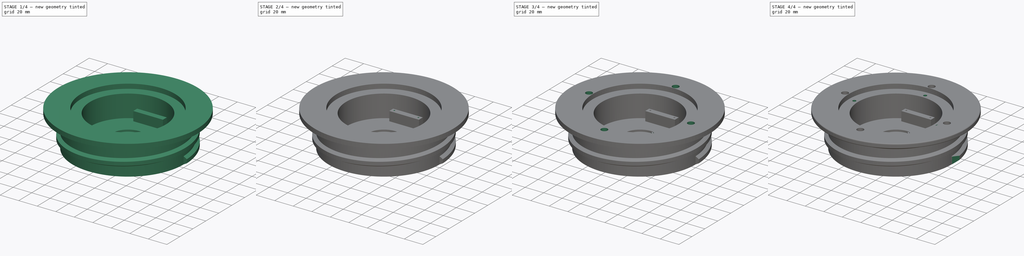
[diagram: build sequence overview — one tinted view per stage of 4, left to right]
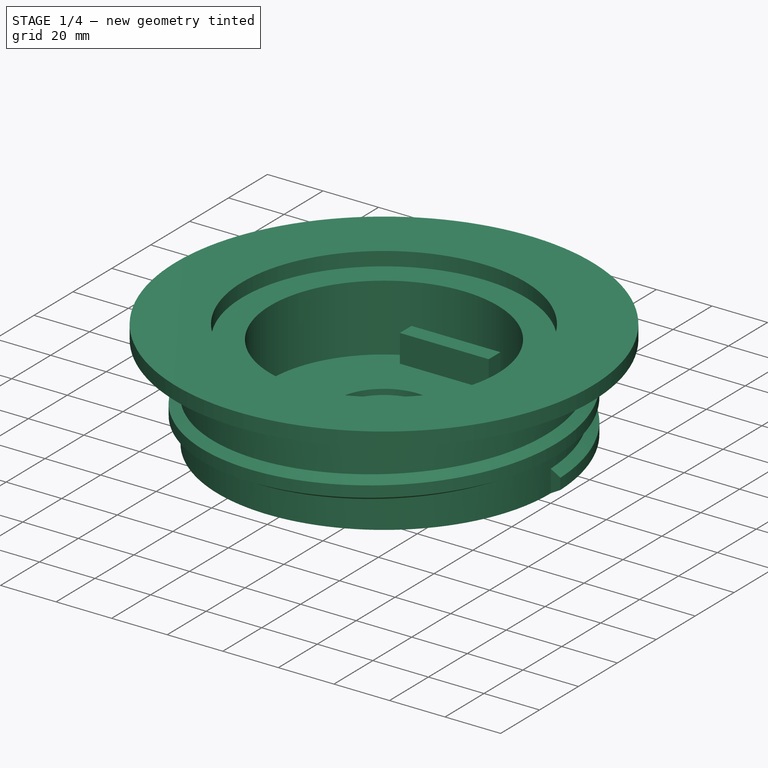
[diagram: stage 1 of 4 — iso view after this stage's code; geometry added in this stage tinted green]
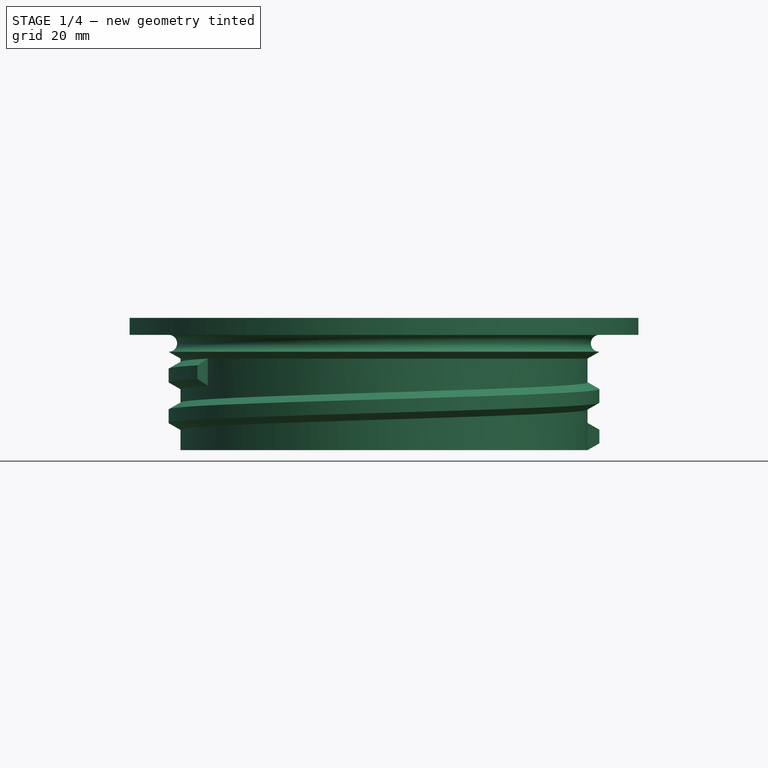
[diagram: stage 1 of 4 — front view after this stage's code; geometry added in this stage tinted green]
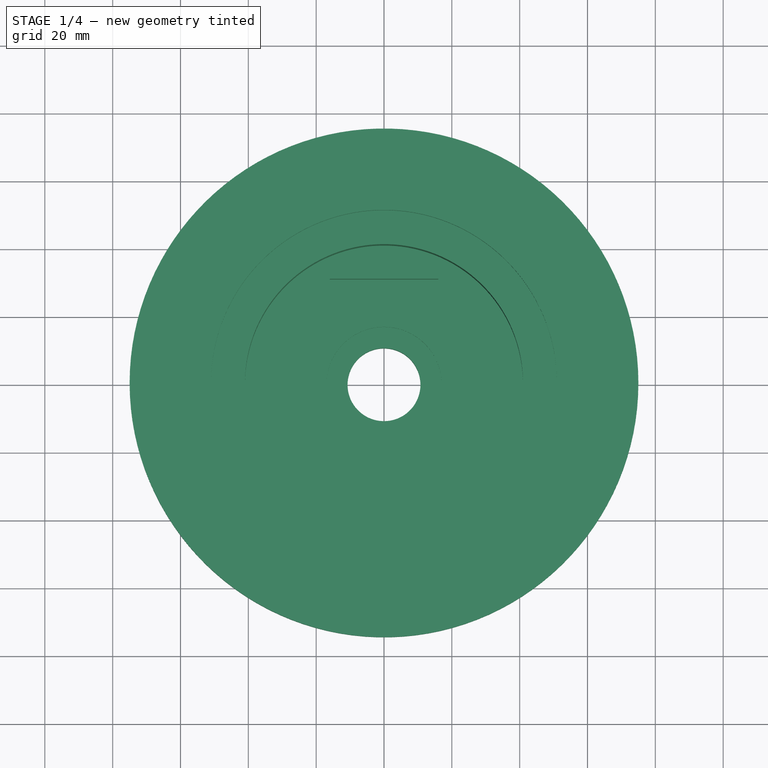
[diagram: stage 1 of 4 — top view after this stage's code; geometry added in this stage tinted green]
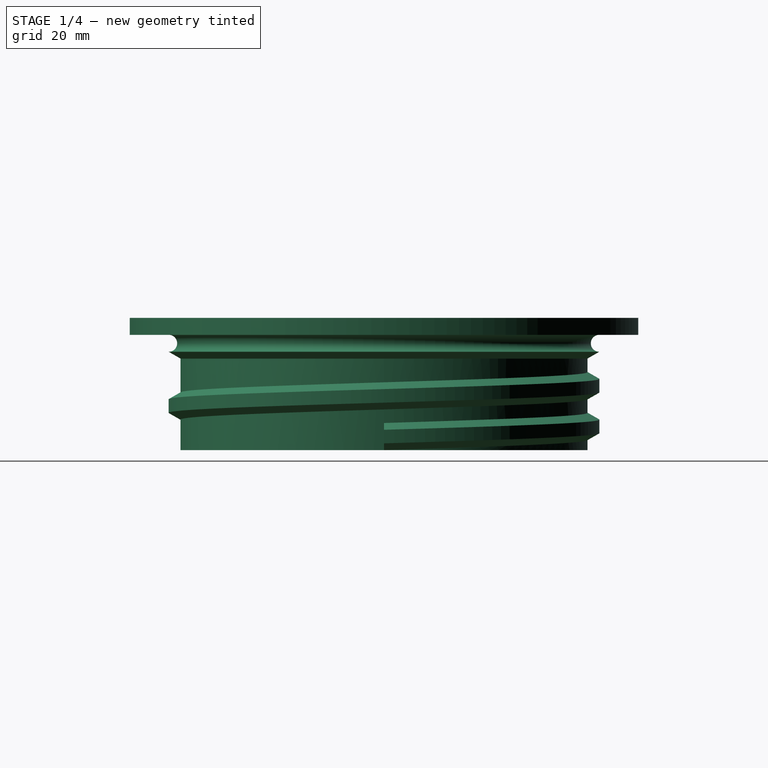
[diagram: stage 1 of 4 — right view after this stage's code; geometry added in this stage tinted green]
FCSTD DOCUMENT  (FreeCAD 0.19R24276 (Git))
Label: watertank_plug
License: All rights reserved
LicenseURL: http://en.wikipedia.org/wiki/All_rights_reserved
objects: Sketcher::SketchObject×10, PartDesign::Pocket×6, Part::Helix×2, PartDesign::FeatureBase×1, PartDesign::AdditivePipe×1, PartDesign::Revolution×1, PartDesign::Pad×1, PartDesign::ShapeBinder×1, PartDesign::SubtractivePipe×1, PartDesign::Fillet×1, PartDesign::Chamfer×1, PartDesign::Body×1
note: 39 computed .brp shape members not serialized (recipe doc carries the construction recipe); baked Part::Feature solids carry a one-line shape summary decoded from their .brp

FEATURE [Part::Helix] Helix
  Angle = 0
  AttacherType = Attacher::AttachEngine3D
  Height = 19
  LocalCoord = 0
  Pitch = 12
  Radius = 60
  Style = 1
FEATURE [PartDesign::FeatureBase] BaseFeature
  BaseFeature = -> Helix
FEATURE [Sketcher::SketchObject] Sketch
  FullyConstrained = true
  MapMode = 5
  Placement = pos=(0,0,0) rot=(1,0,0;1.5708rad)
  Support = -> [XZ_Plane]
  sketch-geometry (6):
    g0: LineSegment StartX=58 StartY=0 StartZ=0 EndX=60 EndY=0 EndZ=0
    g1: LineSegment StartX=60 StartY=0 StartZ=0 EndX=63.5 EndY=2 EndZ=0
    g2: LineSegment StartX=63.5 StartY=2 StartZ=0 EndX=63.5 EndY=6 EndZ=0
    g3: LineSegment StartX=63.5 StartY=6 StartZ=0 EndX=60 EndY=8 EndZ=0
    g4: LineSegment StartX=60 StartY=8 StartZ=0 EndX=58 EndY=8 EndZ=0
    g5: LineSegment StartX=58 StartY=8 StartZ=0 EndX=58 EndY=0 EndZ=0
  constraints (18):
    c: PointOnObject(g0,g-1)
    c: PointOnObject(g0,g-1)
    c: Coincident(g0,g1)
    c: Coincident(g1,g2)
    c: Coincident(g2,g3)
    c: Coincident(g3,g4)
    c: Coincident(g4,g5)
    c: Coincident(g5,g0)
    c: Vertical(g5)
    c: DistanceX(g4,g4) = 2
    c: Horizontal(g4)
    c: Equal(g4,g0)
    c: Vertical(g2)
    c: DistanceY(g2,g2) = 4
    c: DistanceX(g0,g1) = 3.5
    c: DistanceY(g5,g5) = 8
    c: DistanceY(g0,g1) = 2
    c: DistanceX(g-1,g0) = 58
FEATURE [PartDesign::AdditivePipe] AdditivePipe
  AuxilleryCurvelinear = true
  AuxillerySpineTangent = false
  BaseFeature = -> BaseFeature
  Binormal = (0,0,0)
  Mode = 2
  Profile = -> Sketch
  Spine = -> BaseFeature
  SpineTangent = false
  Transformation = 0
  Transition = 0
FEATURE [Sketcher::SketchObject] Sketch001
  FullyConstrained = true
  MapMode = 5
  Placement = pos=(0,0,0) rot=(1,0,0;1.5708rad)
  Support = -> [XZ_Plane]
  sketch-geometry (15):
    g0: LineSegment StartX=11.75 StartY=0 StartZ=0 EndX=10.75 EndY=1 EndZ=0
    g1: LineSegment StartX=10.75 StartY=1 StartZ=0 EndX=10.75 EndY=8 EndZ=0
    g2: LineSegment StartX=17 StartY=10 StartZ=0 EndX=41 EndY=10 EndZ=0
    g3: LineSegment StartX=41 StartY=10 StartZ=0 EndX=41 EndY=34 EndZ=0
    g4: LineSegment StartX=41 StartY=34 StartZ=0 EndX=51 EndY=34 EndZ=0
    g5: LineSegment StartX=51 StartY=34 StartZ=0 EndX=51 EndY=39 EndZ=0
    g6: LineSegment StartX=51 StartY=39 StartZ=0 EndX=75 EndY=39 EndZ=0
    g7: LineSegment StartX=75 StartY=39 StartZ=0 EndX=75 EndY=34 EndZ=0
    g8: LineSegment StartX=75 StartY=34 StartZ=0 EndX=63.5 EndY=34 EndZ=0
    g9: LineSegment StartX=11.75 StartY=0 StartZ=0 EndX=60 EndY=0 EndZ=0
    g10: LineSegment StartX=60 StartY=0 StartZ=0 EndX=60 EndY=27 EndZ=0
    g11: LineSegment StartX=60 StartY=27 StartZ=0 EndX=63.5 EndY=29 EndZ=0
    g12: ArcOfCircle CenterX=63.5 CenterY=31.5 CenterZ=0 NormalX=0 NormalY=0 NormalZ=1 AngleXU=0 Radius=2.5 StartAngle=1.5708 EndAngle=4.71239
    g13: LineSegment StartX=17 StartY=10 StartZ=0 EndX=17 EndY=8 EndZ=0
    g14: LineSegment StartX=10.75 StartY=8 StartZ=0 EndX=17 EndY=8 EndZ=0
  constraints (46):
    c: Coincident(g0,g1)
    c: Vertical(g1)
    c: Horizontal(g2)
    c: Coincident(g2,g3)
    c: Vertical(g3)
    c: Coincident(g3,g4)
    c: Horizontal(g4)
    c: Coincident(g4,g5)
    c: Coincident(g5,g6)
    c: Horizontal(g6)
    c: Coincident(g6,g7)
    c: Vertical(g7)
    c: Coincident(g7,g8)
    c: Horizontal(g8)
    c: Coincident(g0,g9)
    c: Horizontal(g9)
    c: Coincident(g9,g10)
    c: Vertical(g10)
    c: Coincident(g10,g11)
    c: Vertical(g5)
    c: DistanceY(g7,g6) = 5
    c: DistanceX(g3,g4) = 10
    c: DistanceY(g4,g5) = 5
    c: DistanceX(g8,g7) = 11.5
    c: Radius(g12) = 2.5
    c: DistanceX(g12,g7) = 11.5
    c: DistanceX(g11,g7) = 11.5
    c: Coincident(g12,g8)
    c: Coincident(g12,g11)
    c: DistanceX(g10,g11) = 3.5
    c: DistanceY(g9,g10) = 27
    c: DistanceY(g10,g11) = 2
    c: Coincident(g13,g2)
    c: Coincident(g14,g1)
    c: Coincident(g14,g13)
    c: Horizontal(g14)
    c: DistanceY(g13,g2) = 2
    c: DistanceX(g1,g2) = 30.25
    c: DistanceY(g0,g1) = 7
    c: DistanceY(g0,g2) = 10
    c: DistanceX(g-1,g9) = 60
    c: Vertical(g13)
    c: DistanceX(g-1,g2) = 17
    c: DistanceX(g0,g0) = 1
    c: DistanceX(g-1,g1) = 10.75
    c: PointOnObject(g9,g-1)
FEATURE [PartDesign::Revolution] Revolution
  Angle = 360
  Axis = (0,-2e-16,1)
  Base = (0,0,0)
  BaseFeature = -> AdditivePipe
  Profile = -> Sketch001
  ReferenceAxis = -> Sketch001 [V_Axis]
  Reversed = true
FEATURE [Sketcher::SketchObject] Sketch002
  FullyConstrained = true
  MapMode = 5
  Placement = pos=(0,-2.2e-15,10) rot=(0,0,1;0rad)
  Support = -> [Revolution]
  sketch-geometry (4):
    g0: LineSegment StartX=-16 StartY=37 StartZ=0 EndX=16 EndY=37 EndZ=0
    g1: LineSegment StartX=16 StartY=37 StartZ=0 EndX=16 EndY=31 EndZ=0
    g2: LineSegment StartX=16 StartY=31 StartZ=0 EndX=-16 EndY=31 EndZ=0
    g3: LineSegment StartX=-16 StartY=31 StartZ=0 EndX=-16 EndY=37 EndZ=0
  constraints (11):
    c: Coincident(g0,g1)
    c: Coincident(g1,g2)
    c: Coincident(g2,g3)
    c: Coincident(g3,g0)
    c: Horizontal(g2)
    c: Vertical(g1)
    c: Vertical(g3)
    c: DistanceX(g2,g2) = 32
    c: DistanceY(g1,g0) = 6
    c: Symmetric(g0,g0,g-2)
    c: DistanceY(g-1,g0) = 37
FEATURE [PartDesign::Pad] Pad  label="Pad esp32"
  BaseFeature = -> Revolution
  Direction = (1,1,1)
  Length = 10
  Length2 = 100
  Profile = -> Sketch002
  Type = 0
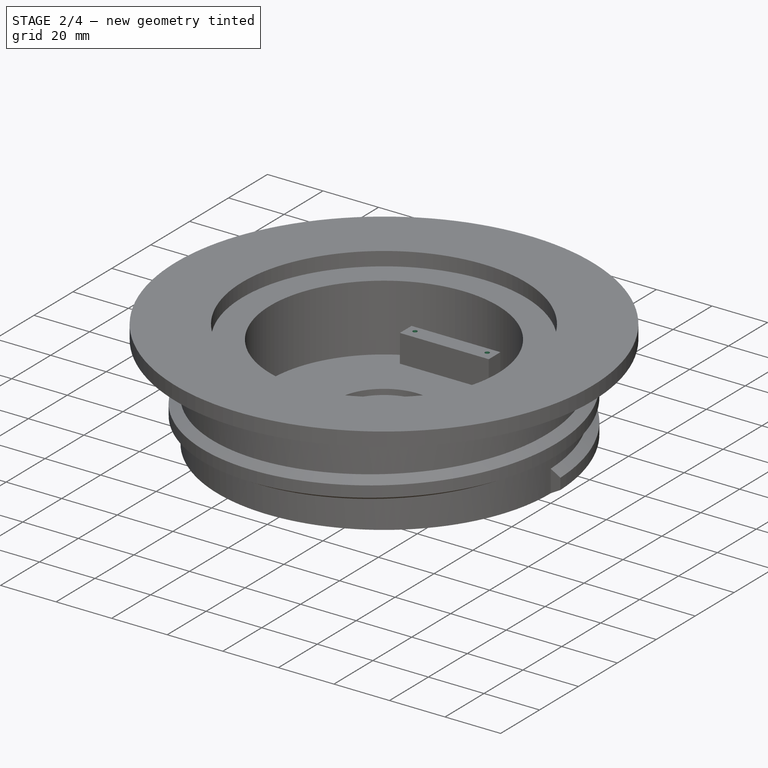
[diagram: stage 2 of 4 — iso view after this stage's code; geometry added in this stage tinted green]
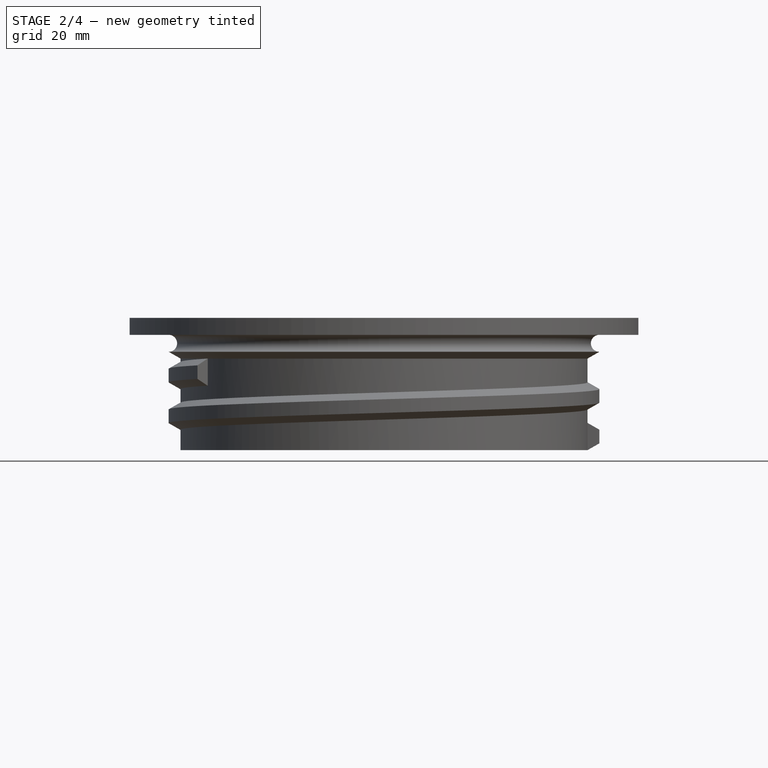
[diagram: stage 2 of 4 — front view after this stage's code; geometry added in this stage tinted green]
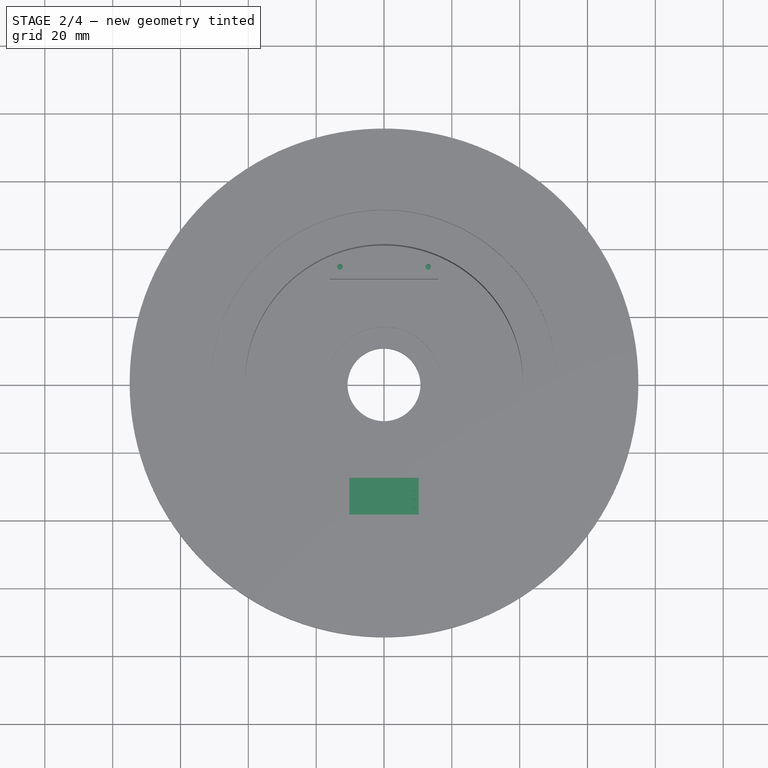
[diagram: stage 2 of 4 — top view after this stage's code; geometry added in this stage tinted green]
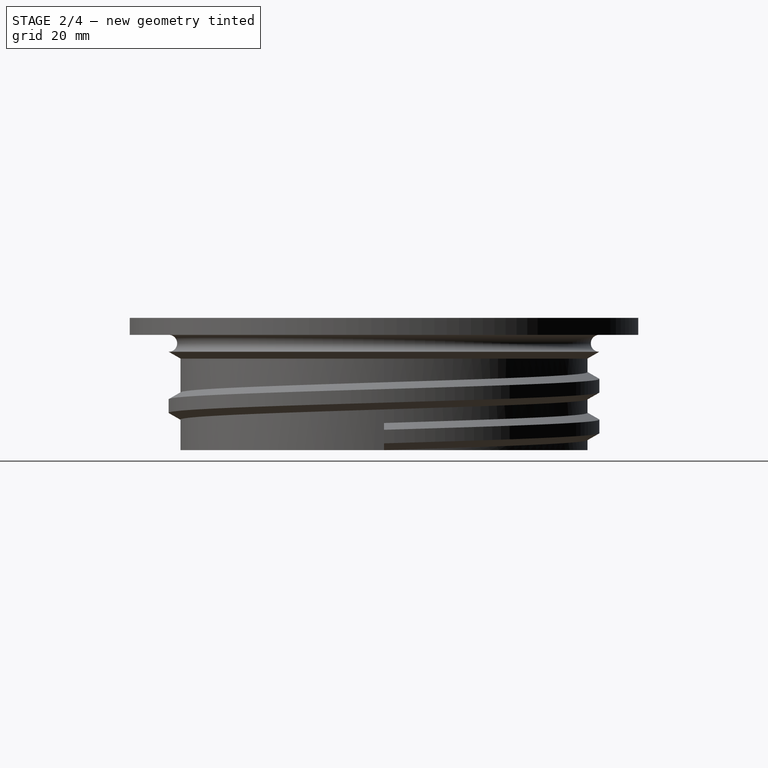
[diagram: stage 2 of 4 — right view after this stage's code; geometry added in this stage tinted green]
FEATURE [Sketcher::SketchObject] Sketch003
  ExternalGeometry = -> [Pad]
  FullyConstrained = true
  MapMode = 5
  Placement = pos=(0,-6e-15,20) rot=(0,0,1;0rad)
  Support = -> [Pad]
  sketch-geometry (6):
    g0: LineSegment StartX=-16 StartY=37 StartZ=0 EndX=16 EndY=37 EndZ=0
    g1: LineSegment StartX=16 StartY=37 StartZ=0 EndX=16 EndY=-3 EndZ=0
    g2: LineSegment StartX=16 StartY=-3 StartZ=0 EndX=-16 EndY=-3 EndZ=0
    g3: LineSegment StartX=-16 StartY=-3 StartZ=0 EndX=-16 EndY=37 EndZ=0
    g4: Circle CenterX=-13 CenterY=34.5 CenterZ=0 NormalX=0 NormalY=0 NormalZ=1 AngleXU=0 Radius=0.8
    g5: Circle CenterX=13 CenterY=34.5 CenterZ=0 NormalX=0 NormalY=0 NormalZ=1 AngleXU=0 Radius=0.8
  constraints (15):
    c: Coincident(g0,g1)
    c: Coincident(g1,g2)
    c: Coincident(g2,g3)
    c: Coincident(g3,g0)
    c: Horizontal(g2)
    c: Vertical(g1)
    c: Vertical(g3)
    c: DistanceY(g1,g1) = 40
    c: Coincident(g0,g-3)
    c: Coincident(g0,g-3)
    c: DistanceX(g4,g5) = 26
    c: Symmetric(g4,g5,g-2)
    c: DistanceY(g4,g0) = 2.5
    c: Radius(g4) = 0.8
    c: Equal(g4,g5)
FEATURE [PartDesign::Pocket] Pocket  label="Pocket esp32"
  BaseFeature = -> Pad
  Length = 8
  Length2 = 100
  Profile = -> Sketch003
  Type = 0
FEATURE [Sketcher::SketchObject] Sketch004
  FullyConstrained = true
  MapMode = 5
  Placement = pos=(0,-2.2e-15,10) rot=(0,0,1;0rad)
  Support = -> [Pocket]
  sketch-geometry (4):
    g0: LineSegment StartX=-10.2 StartY=-27.5 StartZ=0 EndX=10.2 EndY=-27.5 EndZ=0
    g1: LineSegment StartX=10.2 StartY=-27.5 StartZ=0 EndX=10.2 EndY=-38.3 EndZ=0
    g2: LineSegment StartX=10.2 StartY=-38.3 StartZ=0 EndX=-10.2 EndY=-38.3 EndZ=0
    g3: LineSegment StartX=-10.2 StartY=-38.3 StartZ=0 EndX=-10.2 EndY=-27.5 EndZ=0
  constraints (11):
    c: Coincident(g0,g1)
    c: Coincident(g1,g2)
    c: Coincident(g2,g3)
    c: Coincident(g3,g0)
    c: Horizontal(g2)
    c: Vertical(g1)
    c: Vertical(g3)
    c: DistanceX(g0,g0) = 20.4
    c: Symmetric(g0,g0,g-2)
    c: DistanceY(g2,g0) = 10.8
    c: DistanceY(g0,g-1) = 27.5
FEATURE [PartDesign::Pocket] Pocket001  label="Pocket Buck"
  BaseFeature = -> Pocket
  Length = 4
  Length2 = 100
  Profile = -> Sketch004
  Type = 0
FEATURE [Sketcher::SketchObject] Sketch005
  ExternalGeometry = -> [Pocket001]
  FullyConstrained = true
  MapMode = 5
  Placement = pos=(0,-2e-15,6) rot=(0,0,1;0rad)
  Support = -> [Pocket001]
  sketch-geometry (5):
    g0: LineSegment StartX=8.6 StartY=-27.5 StartZ=0 EndX=8.6 EndY=-38.3 EndZ=0
    g1: Circle CenterX=8.6 CenterY=-29.09 CenterZ=0 NormalX=0 NormalY=0 NormalZ=1 AngleXU=0 Radius=0.5
    g2: Circle CenterX=8.6 CenterY=-31.63 CenterZ=0 NormalX=0 NormalY=0 NormalZ=1 AngleXU=0 Radius=0.5
    g3: Circle CenterX=8.6 CenterY=-34.17 CenterZ=0 NormalX=0 NormalY=0 NormalZ=1 AngleXU=0 Radius=0.5
    g4: Circle CenterX=8.6 CenterY=-36.71 CenterZ=0 NormalX=0 NormalY=0 NormalZ=1 AngleXU=0 Radius=0.5
  constraints (16):
    c: PointOnObject(g0,g-3)
    c: PointOnObject(g0,g-4)
    c: Vertical(g0)
    c: DistanceX(g0,g-3) = 1.6
    c: PointOnObject(g1,g0)
    c: PointOnObject(g2,g0)
    c: PointOnObject(g3,g0)
    c: PointOnObject(g4,g0)
    c: DistanceY(g1,g0) = 1.59
    c: DistanceY(g2,g1) = 2.54
    c: DistanceY(g3,g2) = 2.54
    c: DistanceY(g4,g3) = 2.54
    c: Radius(g1) = 0.5
    c: Equal(g1,g2)
    c: Equal(g1,g3)
    c: Equal(g1,g4)
FEATURE [PartDesign::Pocket] Pocket002  label="Pocket Buckpins"
  BaseFeature = -> Pocket001
  Length = 3
  Length2 = 100
  Profile = -> Sketch005
  Type = 0
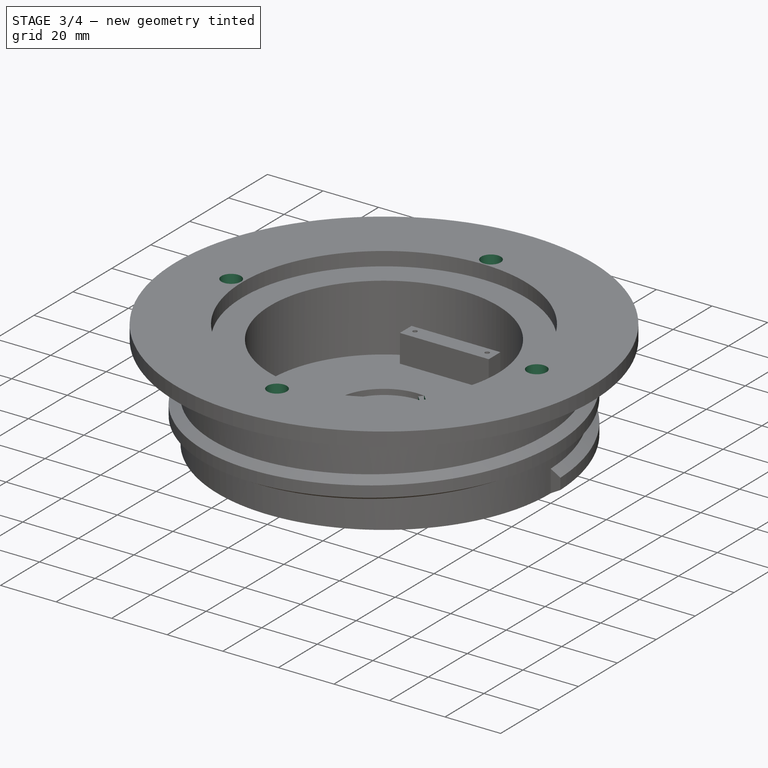
[diagram: stage 3 of 4 — iso view after this stage's code; geometry added in this stage tinted green]
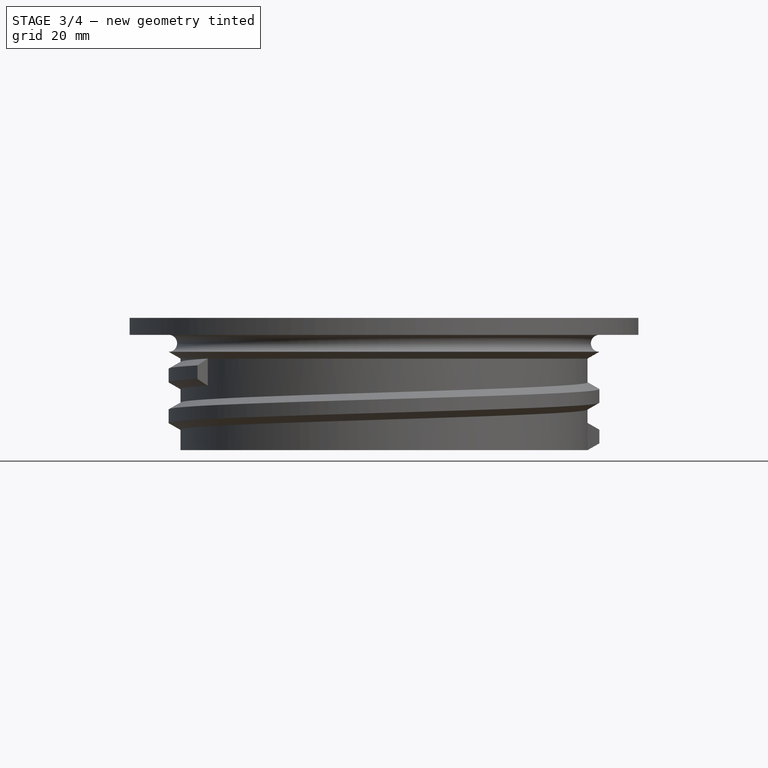
[diagram: stage 3 of 4 — front view after this stage's code; geometry added in this stage tinted green]
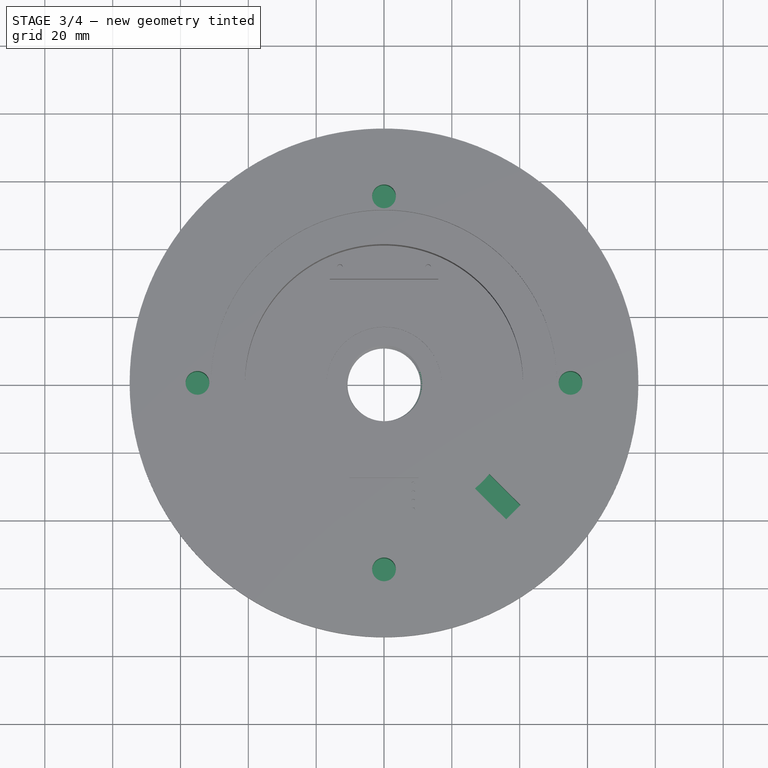
[diagram: stage 3 of 4 — top view after this stage's code; geometry added in this stage tinted green]
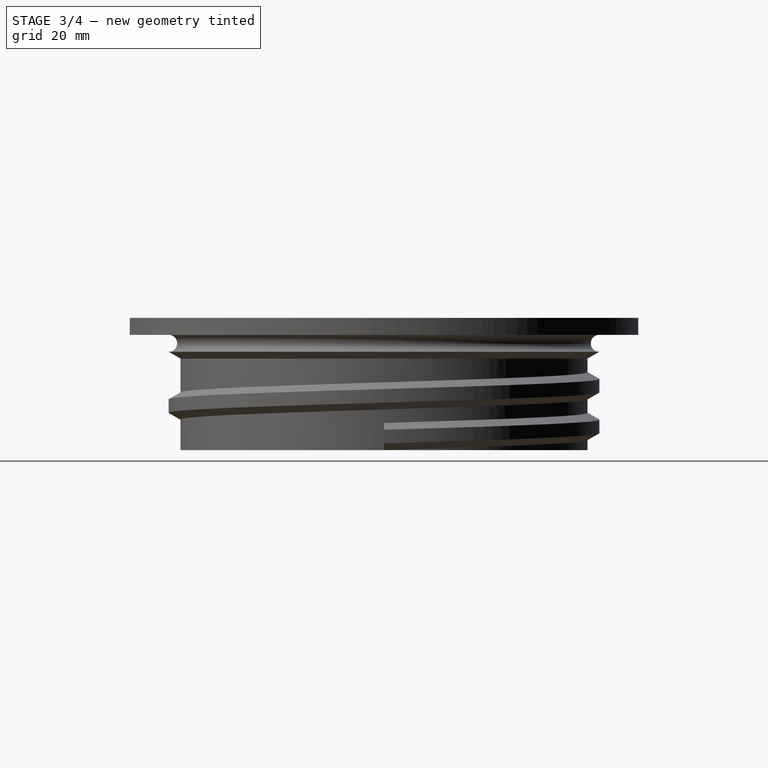
[diagram: stage 3 of 4 — right view after this stage's code; geometry added in this stage tinted green]
FEATURE [Sketcher::SketchObject] Sketch006
  FullyConstrained = true
  MapMode = 5
  Placement = pos=(0,-8.6e-15,39) rot=(0,0,1;0rad)
  Support = -> [Pocket002]
  sketch-geometry (5):
    g0: LineSegment StartX=0 StartY=0 StartZ=0 EndX=53.033 EndY=-53.033 EndZ=0
    g1: LineSegment StartX=25.3969 StartY=-29.6395 StartZ=0 EndX=29.6395 EndY=-25.3969 EndZ=0
    g2: LineSegment StartX=29.6395 StartY=-25.3969 StartZ=0 EndX=40.2461 EndY=-36.0035 EndZ=0
    g3: LineSegment StartX=40.2461 StartY=-36.0035 StartZ=0 EndX=36.0035 EndY=-40.2461 EndZ=0
    g4: LineSegment StartX=36.0035 StartY=-40.2461 StartZ=0 EndX=25.3969 EndY=-29.6395 EndZ=0
  constraints (14):
    c: Coincident(g0,g-1)
    c: Angle(g0,g-1) = 0.785398
    c: Distance(g-1,g0) = 75
    c: Coincident(g1,g2)
    c: Coincident(g2,g3)
    c: Coincident(g3,g4)
    c: Coincident(g4,g1)
    c: Equal(g4,g2)
    c: Equal(g1,g3)
    c: Angle(g4,g1) = 1.5708
    c: Symmetric(g1,g1,g0)
    c: Distance(g2,g3) = 6
    c: Distance(g2,g1) = 15
    c: Distance(g-1,g2) = 54
FEATURE [PartDesign::Pocket] Pocket003  label="Pocket 12V cable"
  BaseFeature = -> Pocket002
  Length = 8
  Length2 = 100
  Profile = -> Sketch006
  Type = 0
FEATURE [Part::Helix] Helix001  label="Helix PG16"
  Angle = 0
  AttacherType = Attacher::AttachEngine3D
  Height = 10
  LocalCoord = 0
  Pitch = 1.41
  Radius = 10.8
  Style = 1
FEATURE [Sketcher::SketchObject] Sketch007
  FullyConstrained = true
  MapMode = 5
  Placement = pos=(0,0,0) rot=(1,0,0;1.5708rad)
  Support = -> [XZ_Plane]
  sketch-geometry (5):
    g0: LineSegment StartX=10.3 StartY=1.31 StartZ=0 EndX=10.8 EndY=1.31 EndZ=0
    g1: LineSegment StartX=10.8 StartY=1.31 StartZ=0 EndX=11.64 EndY=0.655 EndZ=0
    g2: LineSegment StartX=11.64 StartY=0.655 StartZ=0 EndX=10.8 EndY=0 EndZ=0
    g3: LineSegment StartX=10.8 StartY=0 StartZ=0 EndX=10.3 EndY=0 EndZ=0
    g4: LineSegment StartX=10.3 StartY=0 StartZ=0 EndX=10.3 EndY=1.31 EndZ=0
  constraints (15):
    c: Horizontal(g0)
    c: Coincident(g0,g1)
    c: Coincident(g1,g2)
    c: Coincident(g2,g3)
    c: Horizontal(g3)
    c: Coincident(g3,g4)
    c: Coincident(g4,g0)
    c: Vertical(g4)
    c: Equal(g1,g2)
    c: DistanceY(g2,g0) = 1.31
    c: Equal(g0,g3)
    c: DistanceX(g0,g0) = 0.5
    c: DistanceX(g0,g1) = 0.84
    c: DistanceX(g-1,g2) = 10.8
    c: PointOnObject(g2,g-1)
FEATURE [PartDesign::ShapeBinder] CopyHelix001
  TraceSupport = false
FEATURE [PartDesign::SubtractivePipe] SubtractivePipe
  AuxilleryCurvelinear = true
  AuxillerySpineTangent = false
  BaseFeature = -> Pocket003
  Binormal = (0,0,0)
  Mode = 2
  Profile = -> Sketch007
  Spine = -> CopyHelix001
  SpineTangent = false
  Transformation = 0
  Transition = 0
FEATURE [Sketcher::SketchObject] Sketch008
  FullyConstrained = true
  MapMode = 5
  Placement = pos=(0,-8.6e-15,39) rot=(0,0,1;0rad)
  Support = -> [SubtractivePipe]
  sketch-geometry (4):
    g0: Circle CenterX=-55 CenterY=0 CenterZ=0 NormalX=0 NormalY=0 NormalZ=1 AngleXU=0 Radius=3.5
    g1: Circle CenterX=0 CenterY=55 CenterZ=0 NormalX=0 NormalY=0 NormalZ=1 AngleXU=0 Radius=3.5
    g2: Circle CenterX=55 CenterY=0 CenterZ=0 NormalX=0 NormalY=0 NormalZ=1 AngleXU=0 Radius=3.5
    g3: Circle CenterX=0 CenterY=-55 CenterZ=0 NormalX=0 NormalY=0 NormalZ=1 AngleXU=0 Radius=3.5
  constraints (12):
    c: PointOnObject(g0,g-1)
    c: PointOnObject(g1,g-2)
    c: PointOnObject(g2,g-1)
    c: PointOnObject(g3,g-2)
    c: DistanceX(g0,g-1) = 55
    c: DistanceX(g-1,g2) = 55
    c: DistanceY(g-1,g1) = 55
    c: DistanceY(g3,g-1) = 55
    c: Radius(g0) = 3.5
    c: Equal(g0,g1)
    c: Equal(g0,g2)
    c: Equal(g0,g3)
FEATURE [PartDesign::Pocket] Pocket004  label="Pocket 7mm"
  BaseFeature = -> SubtractivePipe
  Length = 15
  Length2 = 100
  Profile = -> Sketch008
  Type = 0
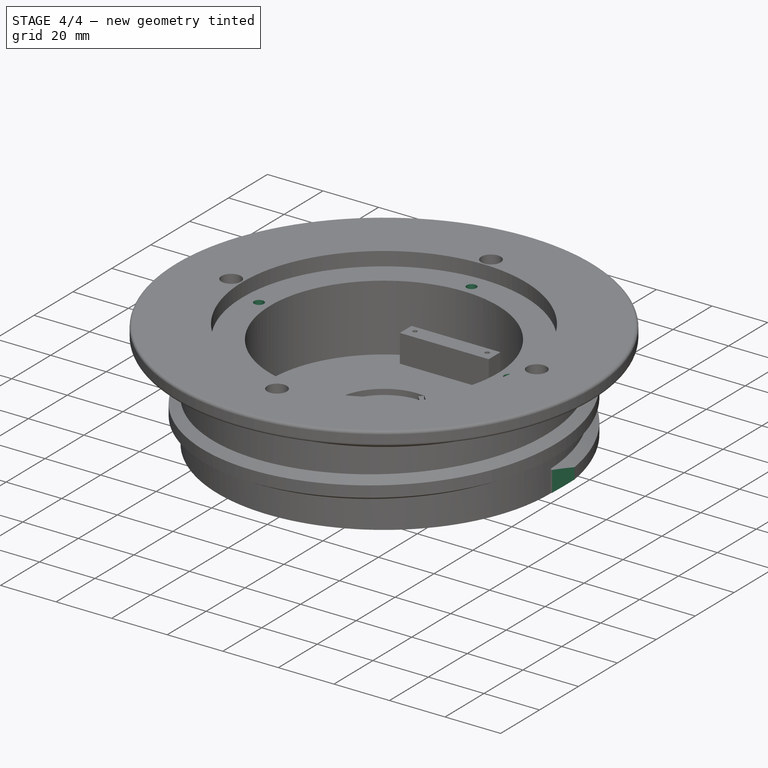
[diagram: stage 4 of 4 — iso view after this stage's code; geometry added in this stage tinted green]
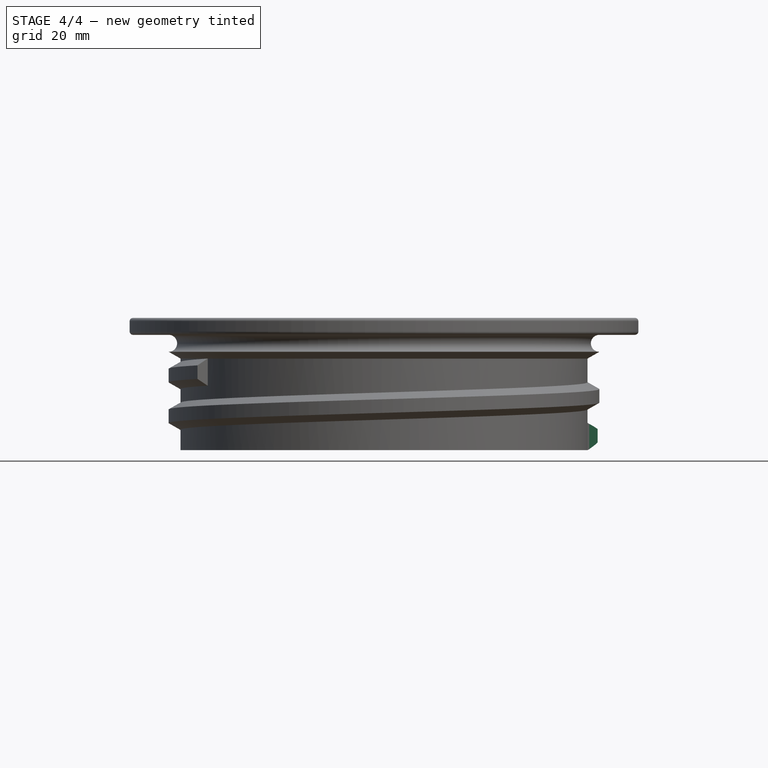
[diagram: stage 4 of 4 — front view after this stage's code; geometry added in this stage tinted green]
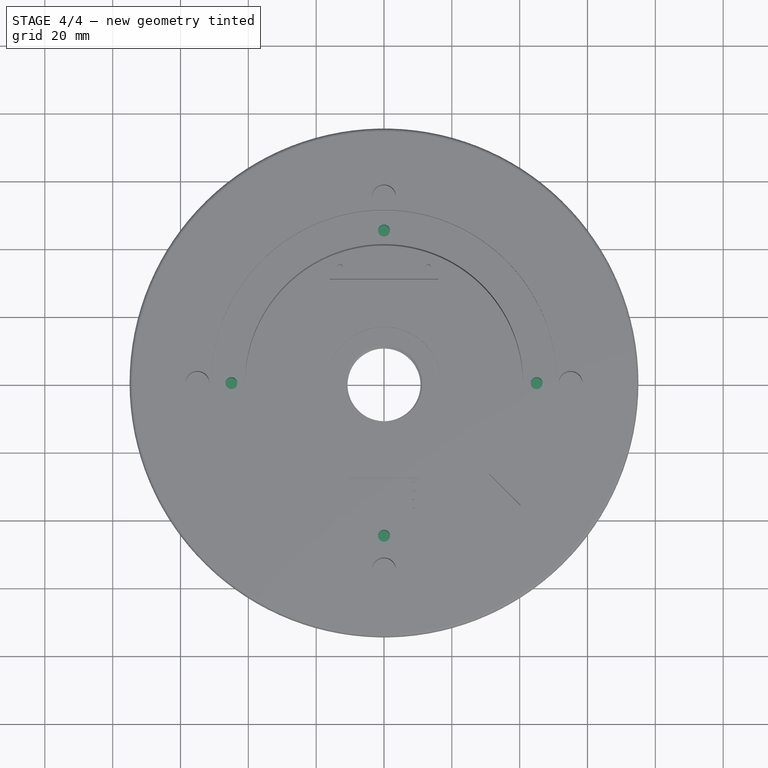
[diagram: stage 4 of 4 — top view after this stage's code; geometry added in this stage tinted green]
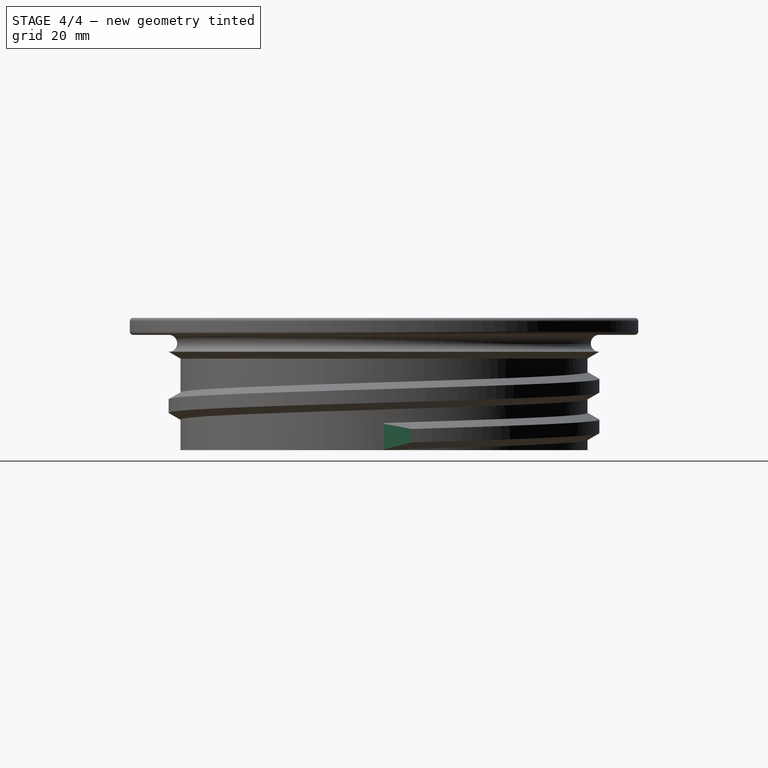
[diagram: stage 4 of 4 — right view after this stage's code; geometry added in this stage tinted green]
FEATURE [Sketcher::SketchObject] Sketch009
  FullyConstrained = true
  MapMode = 5
  Placement = pos=(0,-7.5e-15,34) rot=(0,0,1;0rad)
  Support = -> [Pocket004]
  sketch-geometry (4):
    g0: Circle CenterX=0 CenterY=45 CenterZ=0 NormalX=0 NormalY=0 NormalZ=1 AngleXU=0 Radius=1.75
    g1: Circle CenterX=-45 CenterY=0 CenterZ=0 NormalX=0 NormalY=0 NormalZ=1 AngleXU=0 Radius=1.75
    g2: Circle CenterX=45 CenterY=0 CenterZ=0 NormalX=0 NormalY=0 NormalZ=1 AngleXU=0 Radius=1.75
    g3: Circle CenterX=0 CenterY=-45 CenterZ=0 NormalX=0 NormalY=0 NormalZ=1 AngleXU=0 Radius=1.75
  constraints (12):
    c: PointOnObject(g0,g-2)
    c: PointOnObject(g1,g-1)
    c: PointOnObject(g2,g-1)
    c: PointOnObject(g3,g-2)
    c: DistanceX(g1,g-1) = 45
    c: DistanceX(g-1,g2) = 45
    c: DistanceY(g-1,g0) = 45
    c: DistanceY(g3,g-1) = 45
    c: Radius(g1) = 1.75
    c: Equal(g1,g0)
    c: Equal(g1,g2)
    c: Equal(g1,g3)
FEATURE [PartDesign::Pocket] Pocket005  label="Pocket m4"
  BaseFeature = -> Pocket004
  Length = 10
  Length2 = 100
  Profile = -> Sketch009
  Type = 0
FEATURE [PartDesign::Fillet] Fillet
  Base = -> Pocket005 [Edge58,Edge69]
  BaseFeature = -> Pocket005
  Radius = 1
  SupportTransform = false
FEATURE [PartDesign::Chamfer] Chamfer
  Angle = 45
  Base = -> Fillet [Edge77]
  BaseFeature = -> Fillet
  ChamferType = 1
  FlipDirection = false
  Size = 8
  Size2 = 3
  SupportTransform = false
FEATURE [PartDesign::Body] Body
  BaseFeature = -> Helix
  Group = -> [BaseFeature,Sketch,AdditivePipe,Sketch001,Revolution,Sketch002,Pad,Sketch003,Pocket,Sketch004,Pocket001,Sketch005,Pocket002,Sketch006,Pocket003,Sketch007,SubtractivePipe,CopyHelix001,Sketch008,Pocket004,Sketch009,Pocket005,Fillet,Chamfer]
  Origin = -> Origin
  Tip = -> Chamfer
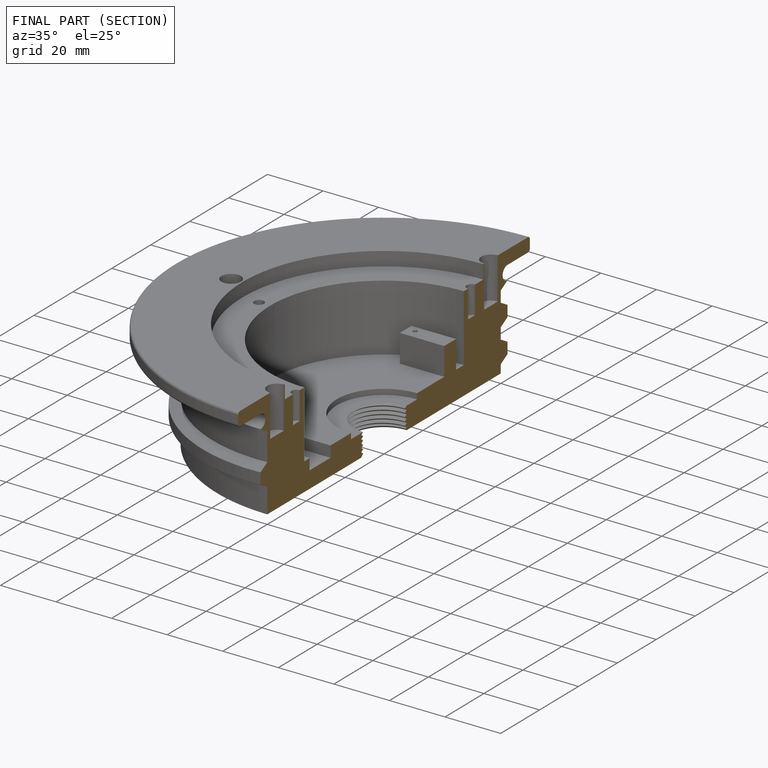
[diagram: finished part — half-section view (interior)]
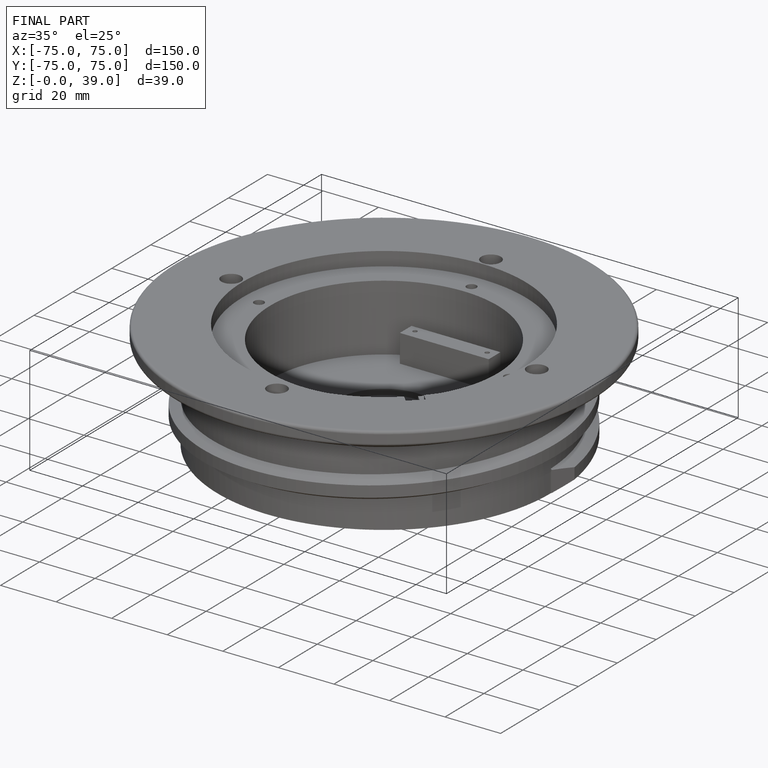
[diagram: finished part — iso view with bounding-box wireframe]
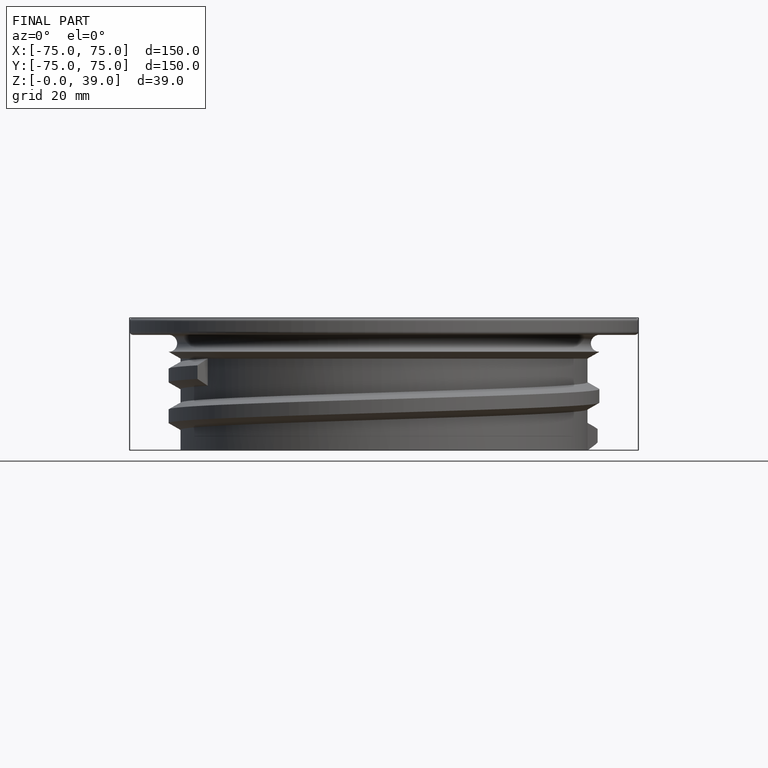
[diagram: finished part — front view with bounding-box wireframe]
